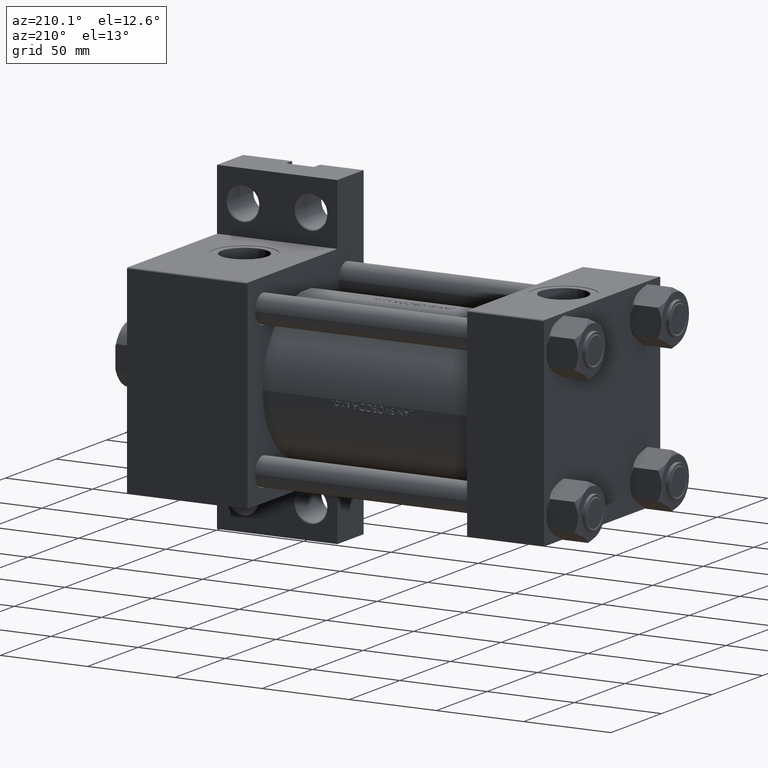
[diagram: clean part render]
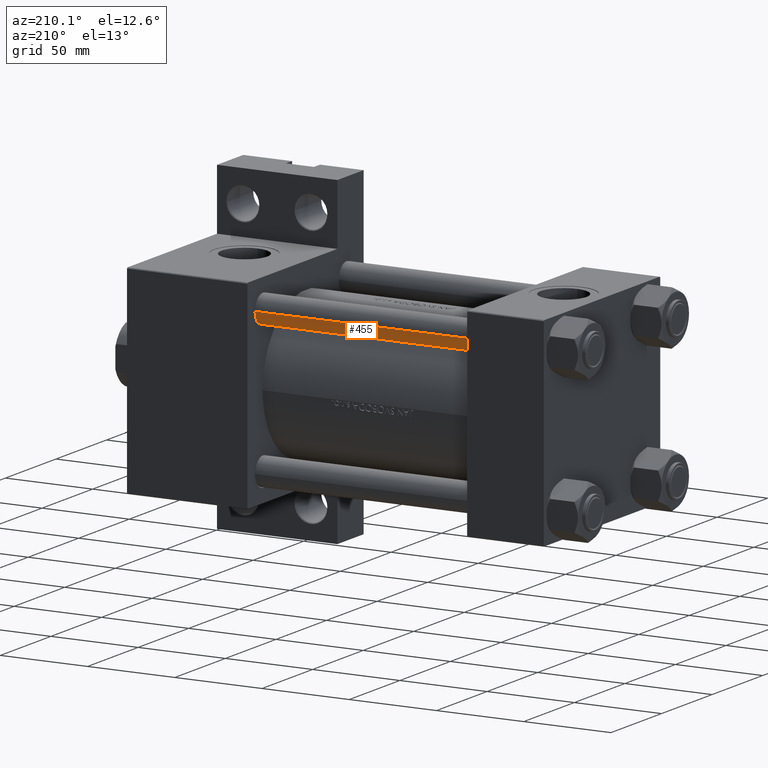
[diagram: same view with one face highlighted and labeled with its STEP entity id]
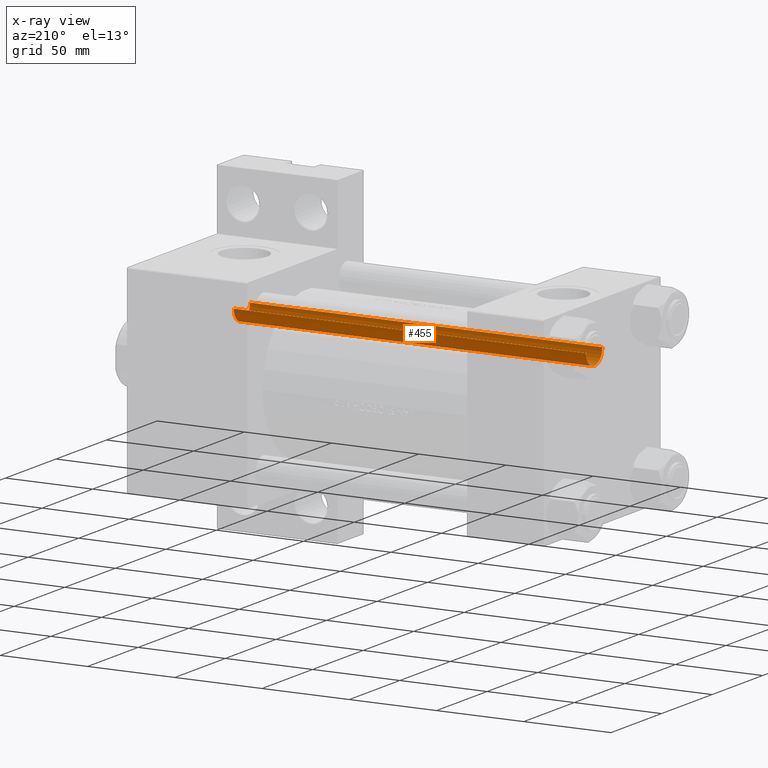
[diagram: x-ray of the same camera — body ghosted, the highlighted face saturated]
A machine part, auxiliary view. The second image highlights one B-rep face of the part: STEP entity #455.
The next image is the same camera in x-ray: the body ghosted, the highlighted face saturated — about 0% of this face is hidden behind the body in this view.
In plain terms, the highlighted cylindrical surface (edge-blend (fillet) strip) has radius 8 mm, axis along (1, -0, 0).
Its self-contained STEP definition (entity closure, byte-faithful):
#159 = DIRECTION ( 'NONE',  ( -0.000000000000000000, -0.000000000000000000, -1.000000000000000000 ) ) ;
#213 = ORIENTED_EDGE ( 'NONE', *, *, #34274, .T. ) ;
#455 = ADVANCED_FACE ( 'NONE', ( #32954 ), #31440, .T. ) ;
#857 = CARTESIAN_POINT ( 'NONE',  ( -8.000000000000000000, 0.000000000000000000, 202.5000000000000853 ) ) ;
#4289 = LINE ( 'NONE', #15008, #46283 ) ;
#4367 = ORIENTED_EDGE ( 'NONE', *, *, #44449, .F. ) ;
#7270 = VERTEX_POINT ( 'NONE', #37414 ) ;
#9268 = VERTEX_POINT ( 'NONE', #36447 ) ;
#9294 = DIRECTION ( 'NONE',  ( -0.000000000000000000, -0.000000000000000000, -1.000000000000000000 ) ) ;
#11777 = CIRCLE ( 'NONE', #41316, 8.000000000000000000 ) ;
#11901 = DIRECTION ( 'NONE',  ( 1.000000000000000000, 0.000000000000000000, 0.000000000000000000 ) ) ;
#14906 = DIRECTION ( 'NONE',  ( 1.000000000000000000, 0.000000000000000000, 0.000000000000000000 ) ) ;
#14978 = EDGE_LOOP ( 'NONE', ( #27745, #46774, #213, #4367 ) ) ;
#15008 = CARTESIAN_POINT ( 'NONE',  ( -8.000000000000000000, 0.000000000000000000, 203.0000000000000000 ) ) ;
#19849 = VECTOR ( 'NONE', #43888, 1000.000000000000000 ) ;
#22202 = CARTESIAN_POINT ( 'NONE',  ( 0.000000000000000000, 0.000000000000000000, 0.5000000000001947331 ) ) ;
#25612 = DIRECTION ( 'NONE',  ( -0.000000000000000000, -0.000000000000000000, 1.000000000000000000 ) ) ;
#27745 = ORIENTED_EDGE ( 'NONE', *, *, #34577, .T. ) ;
#31440 = CYLINDRICAL_SURFACE ( 'NONE', #39682, 8.000000000000000000 ) ;
#32954 = FACE_OUTER_BOUND ( 'NONE', #14978, .T. ) ;
#33545 = AXIS2_PLACEMENT_3D ( 'NONE', #22202, #25612, #14906 ) ;
#34060 = CARTESIAN_POINT ( 'NONE',  ( 0.000000000000000000, 0.000000000000000000, 202.5000000000000853 ) ) ;
#34274 = EDGE_CURVE ( 'NONE', #9268, #7270, #46740, .T. ) ;
#34296 = DIRECTION ( 'NONE',  ( 0.000000000000000000, 0.000000000000000000, -1.000000000000000000 ) ) ;
#34577 = EDGE_CURVE ( 'NONE', #42768, #36160, #11777, .T. ) ;
#36160 = VERTEX_POINT ( 'NONE', #40764 ) ;
#36447 = CARTESIAN_POINT ( 'NONE',  ( 8.000000000000000000, 9.797174393178823685E-16, 0.5000000000001947331 ) ) ;
#37414 = CARTESIAN_POINT ( 'NONE',  ( -8.000000000000000000, 0.000000000000000000, 0.5000000000001947331 ) ) ;
#39682 = AXIS2_PLACEMENT_3D ( 'NONE', #43564, #9294, #42612 ) ;
#40764 = CARTESIAN_POINT ( 'NONE',  ( 8.000000000000000000, 9.797174393178823685E-16, 202.5000000000000853 ) ) ;
#41316 = AXIS2_PLACEMENT_3D ( 'NONE', #34060, #34296, #11901 ) ;
#42612 = DIRECTION ( 'NONE',  ( -1.000000000000000000, 0.000000000000000000, 0.000000000000000000 ) ) ;
#42768 = VERTEX_POINT ( 'NONE', #857 ) ;
#43564 = CARTESIAN_POINT ( 'NONE',  ( 0.000000000000000000, 0.000000000000000000, 203.0000000000000000 ) ) ;
#43888 = DIRECTION ( 'NONE',  ( -0.000000000000000000, -0.000000000000000000, -1.000000000000000000 ) ) ;
#43889 = EDGE_CURVE ( 'NONE', #36160, #9268, #44367, .T. ) ;
#44367 = LINE ( 'NONE', #44606, #19849 ) ;
#44449 = EDGE_CURVE ( 'NONE', #42768, #7270, #4289, .T. ) ;
#44606 = CARTESIAN_POINT ( 'NONE',  ( 8.000000000000000000, 9.797174393178823685E-16, 203.0000000000000000 ) ) ;
#46283 = VECTOR ( 'NONE', #159, 1000.000000000000000 ) ;
#46740 = CIRCLE ( 'NONE', #33545, 8.000000000000000000 ) ;
#46774 = ORIENTED_EDGE ( 'NONE', *, *, #43889, .T. ) ;